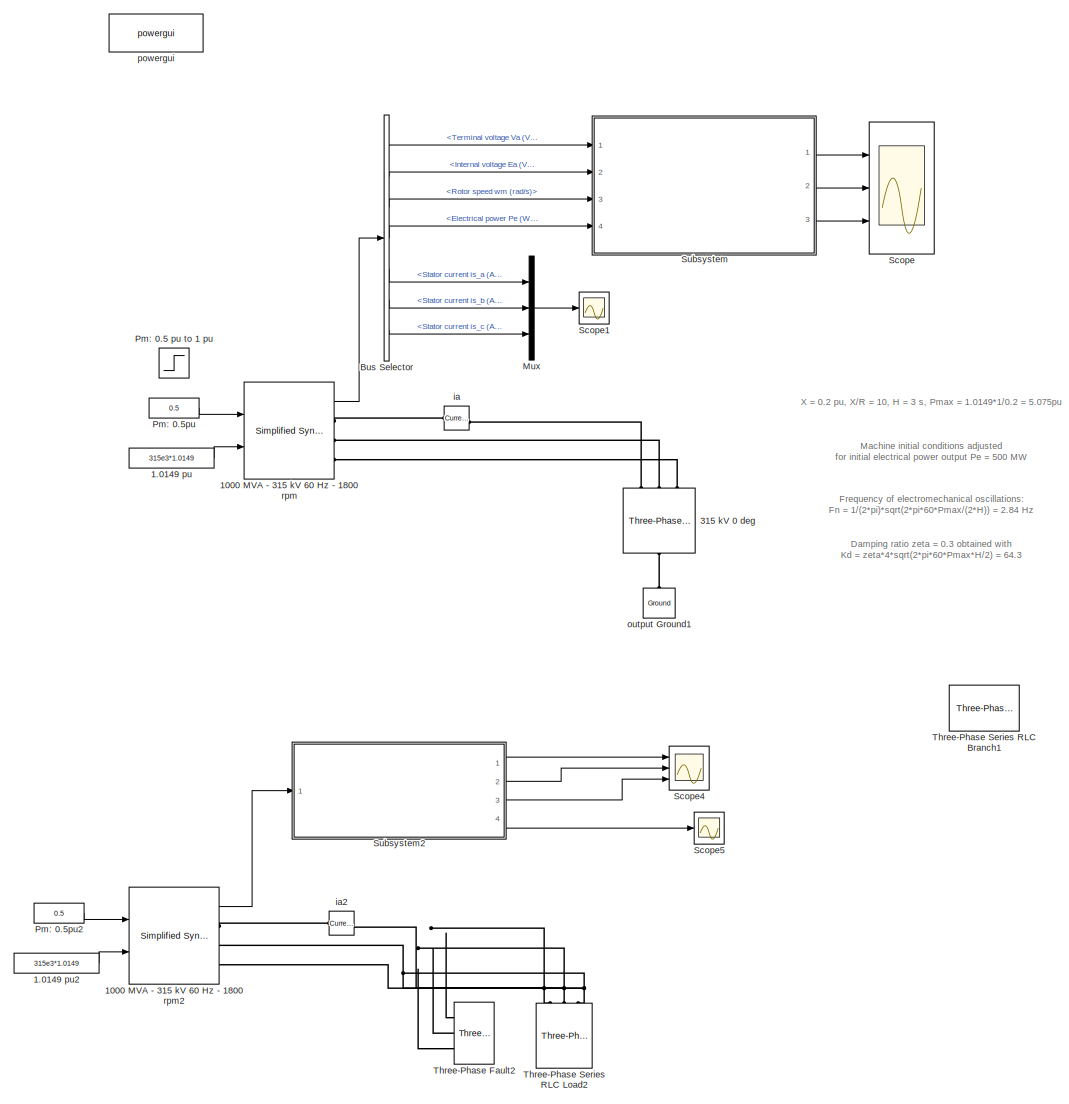
[diagram: root canvas - part 1/1, most of the canvas]
MODEL slx_e0d8c2427ed1
KIND model
CONFIG AbsTol = auto
CONFIG EnableMultiTasking = off
CONFIG FixedStep = auto
CONFIG MaxStep = auto
CONFIG MinStep = auto
CONFIG RelTol = 1e-3
CONFIG SampleTimeConstraint = Unconstrained
CONFIG Solver = VariableStepAuto
CONFIG SolverName = VariableStepAuto
CONFIG StartTime = 0.0
CONFIG StopTime = 2
BLOCK [Constant] 1.0149 pu
  Value = 315e3*1.0149
BLOCK [Constant] 1.0149 pu2
  Value = 315e3*1.0149
BLOCK [Reference] 1000 MVA - 315 kV 60 Hz - 1800 rpm  REF=powerlib/Machines/Simplified Synchronous
Machine SI Units
  AttributesFormatString = \n
  Ports = [2, 1, 0, 0, 0, 0, 3]
  SourceBlock = powerlib/Machines/Simplified Synchronous\nMachine SI Units
  SourceProductBaseCode = PS
  SourceProductName = Simscape Power Systems
  SourceType = Simplified Synchronous Machine
BLOCK [Reference] 1000 MVA - 315 kV 60 Hz - 1800 rpm2  REF=powerlib/Machines/Simplified Synchronous
Machine SI Units
  AttributesFormatString = \n
  Ports = [2, 1, 0, 0, 0, 0, 3]
  SourceBlock = powerlib/Machines/Simplified Synchronous\nMachine SI Units
  SourceProductBaseCode = PS
  SourceProductName = Simscape Power Systems
  SourceType = Simplified Synchronous Machine
BLOCK [Reference] 315 kV 0 deg  REF=powerlib/Electrical
Sources/Three-Phase
Programmable
Voltage Source
  Ports = [0, 0, 0, 0, 0, 1, 3]
  SourceBlock = powerlib/Electrical\nSources/Three-Phase\nProgrammable\nVoltage Source
  SourceProductBaseCode = PS
  SourceProductName = Simscape Power Systems
  SourceType = Three-Phase Programmable Voltage Source
BLOCK [BusSelector] Bus Selector
  OutputAsBus = off
  OutputSignals = Terminal voltage Va (V),Internal voltage Ea (V),Rotor speed wm (rad/s),Electrical power Pe (W),Stator current is_a (A),Stator current is_b (A),Stator current is_c (A)
  Ports = [1, 7]
BLOCK [Mux] Mux
  DisplayOption = bar
  Inputs = 3
  Ports = [3, 1]
BLOCK [Step] Pm: 0.5 pu to 1 pu
  After = 1000e6
  Before = 505e6
  SampleTime = 0
  Time = 0.5
BLOCK [Constant] Pm: 0.5pu
  Value = 0.5
BLOCK [Constant] Pm: 0.5pu2
  Value = 0.5
BLOCK [Scope] Scope
  Floating = off
  NumInputPorts = 3
  Ports = [3]
  ScopeSpecificationString = Simulink.scopes.TimeScopeBlockCfg('CurrentConfiguration', extmgr.ConfigurationSet(extmgr.Configuration('Core','General UI',true),extmgr.Configuration('Core','Source UI',true),extmgr.Configuration('Sources','WiredSimulink',true,'DataLogging',true,'DataLoggingVariableName','delta','DataLoggingSaveFormat','Structure','DataLoggingDecimation','1','DataLoggingDecimateData',true),extmgr.Configuration('Vi...<+3068ch>
BLOCK [Scope] Scope1
  Floating = off
  NumInputPorts = 1
  Ports = [1]
  ScopeSpecificationString = Simulink.scopes.TimeScopeBlockCfg('CurrentConfiguration', extmgr.ConfigurationSet(extmgr.Configuration('Core','General UI',true),extmgr.Configuration('Core','Source UI',true),extmgr.Configuration('Sources','WiredSimulink',true),extmgr.Configuration('Visuals','Time Domain',true,'SerializedDisplays',{struct('MinYLimReal','-26487.88358','MaxYLimReal','27077.44989','YLabelReal','','MinYLimMag','   0.0...<+1505ch>
BLOCK [Scope] Scope4
  Floating = off
  NumInputPorts = 3
  Ports = [3]
  ScopeSpecificationString = Simulink.scopes.TimeScopeBlockCfg('CurrentConfiguration', extmgr.ConfigurationSet(extmgr.Configuration('Core','General UI',true),extmgr.Configuration('Core','Source UI',true),extmgr.Configuration('Sources','WiredSimulink',true,'DataLogging',true,'DataLoggingVariableName','ScopeData3','DataLoggingSaveFormat','Structure','DataLoggingDecimation','1','DataLoggingDecimateData',true),extmgr.Configuratio...<+3078ch>
BLOCK [Scope] Scope5
  Floating = off
  NumInputPorts = 1
  Ports = [1]
  ScopeSpecificationString = Simulink.scopes.TimeScopeBlockCfg('CurrentConfiguration', extmgr.ConfigurationSet(extmgr.Configuration('Core','General UI',true),extmgr.Configuration('Core','Source UI',true),extmgr.Configuration('Sources','WiredSimulink',true,'DataLoggingVariableName','ScopeData4'),extmgr.Configuration('Visuals','Time Domain',true,'SerializedDisplays',{struct('MinYLimReal','-26487.88358','MaxYLimReal','27077.4498...<+1469ch>
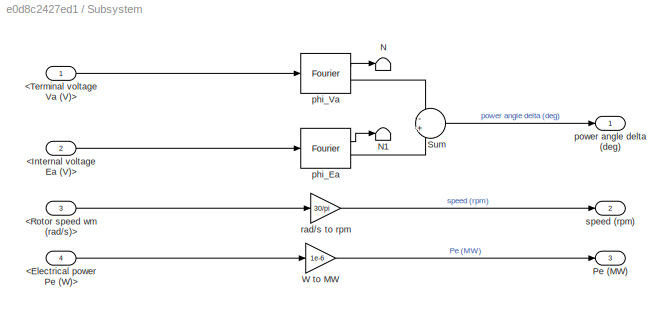
BLOCK [SubSystem] Subsystem
  Ports = [4, 3]
  RequestExecContextInheritance = off
BLOCK [Inport] Subsystem/<Electrical power Pe (W)>
  IconDisplay = Port number
  Port = 4
BLOCK [Inport] Subsystem/<Internal voltage Ea (V)>
  IconDisplay = Port number
  Port = 2
BLOCK [Inport] Subsystem/<Rotor speed wm (rad//s)>
  IconDisplay = Port number
  Port = 3
BLOCK [Inport] Subsystem/<Terminal voltage Va (V)>
  IconDisplay = Port number
BLOCK [Terminator] Subsystem/N
BLOCK [Terminator] Subsystem/N1
BLOCK [Outport] Subsystem/Pe (MW)
  IconDisplay = Port number
  Port = 3
BLOCK [Sum] Subsystem/Sum
  IconShape = round
  Inputs = -+
  Ports = [2, 1]
BLOCK [Gain] Subsystem/W to MW
  Gain = 1e-6
BLOCK [Reference] Subsystem/phi_Ea  REF=powerlib_meascontrol/Measurements/Fourier
  Ports = [1, 2]
  SourceBlock = powerlib_meascontrol/Measurements/Fourier
  SourceProductBaseCode = PS
  SourceProductName = Simscape Power Systems
  SourceType = Fourier
BLOCK [Reference] Subsystem/phi_Va  REF=powerlib_meascontrol/Measurements/Fourier
  Ports = [1, 2]
  SourceBlock = powerlib_meascontrol/Measurements/Fourier
  SourceProductBaseCode = PS
  SourceProductName = Simscape Power Systems
  SourceType = Fourier
BLOCK [Outport] Subsystem/power angle delta (deg)
  IconDisplay = Port number
BLOCK [Gain] Subsystem/rad//s to rpm
  Gain = 30/pi
BLOCK [Outport] Subsystem/speed (rpm)
  IconDisplay = Port number
  Port = 2
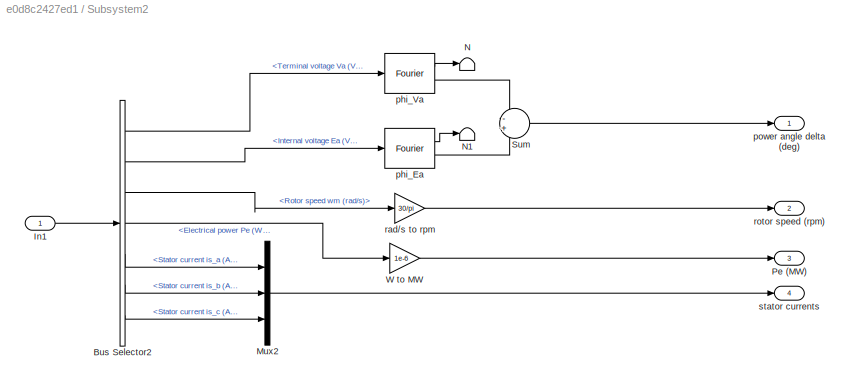
BLOCK [SubSystem] Subsystem2
  Ports = [1, 4]
  RequestExecContextInheritance = off
BLOCK [BusSelector] Subsystem2/Bus Selector2
  OutputAsBus = off
  OutputSignals = Terminal voltage Va (V),Internal voltage Ea (V),Rotor speed wm (rad/s),Electrical power Pe (W),Stator current is_a (A),Stator current is_b (A),Stator current is_c (A)
  Ports = [1, 7]
BLOCK [Inport] Subsystem2/In1
  IconDisplay = Port number
BLOCK [Mux] Subsystem2/Mux2
  DisplayOption = bar
  Inputs = 3
  Ports = [3, 1]
BLOCK [Terminator] Subsystem2/N
BLOCK [Terminator] Subsystem2/N1
BLOCK [Outport] Subsystem2/Pe (MW)
  IconDisplay = Port number
  Port = 3
BLOCK [Sum] Subsystem2/Sum
  IconShape = round
  Inputs = -+
  Ports = [2, 1]
BLOCK [Gain] Subsystem2/W to MW
  Gain = 1e-6
BLOCK [Reference] Subsystem2/phi_Ea  REF=powerlib_meascontrol/Measurements/Fourier
  Ports = [1, 2]
  SourceBlock = powerlib_meascontrol/Measurements/Fourier
  SourceProductBaseCode = PS
  SourceProductName = Simscape Power Systems
  SourceType = Fourier
BLOCK [Reference] Subsystem2/phi_Va  REF=powerlib_meascontrol/Measurements/Fourier
  Ports = [1, 2]
  SourceBlock = powerlib_meascontrol/Measurements/Fourier
  SourceProductBaseCode = PS
  SourceProductName = Simscape Power Systems
  SourceType = Fourier
BLOCK [Outport] Subsystem2/power angle delta (deg)
  IconDisplay = Port number
BLOCK [Gain] Subsystem2/rad//s to rpm
  Gain = 30/pi
BLOCK [Outport] Subsystem2/rotor speed (rpm)
  IconDisplay = Port number
  Port = 2
BLOCK [Outport] Subsystem2/stator currents
  IconDisplay = Port number
  Port = 4
BLOCK [Reference] Three-Phase Fault2  REF=powerlib/Elements/Three-Phase Fault
  Ports = [0, 0, 0, 0, 0, 3]
  SourceBlock = powerlib/Elements/Three-Phase Fault
  SourceProductBaseCode = PS
  SourceProductName = Simscape Power Systems
  SourceType = Three-Phase Fault
BLOCK [Reference] Three-Phase Series RLC Branch1  REF=powerlib/Elements/Three-Phase
Series RLC Branch
  AttributesFormatString = \n
  Ports = [0, 0, 0, 0, 0, 3, 3]
  SourceBlock = powerlib/Elements/Three-Phase\nSeries RLC Branch
  SourceProductBaseCode = PS
  SourceProductName = Simscape Power Systems
  SourceType = Three-Phase Series RLC Branch
BLOCK [Reference] Three-Phase Series RLC Load2  REF=powerlib/Elements/Three-Phase
Series RLC Load
  AttributesFormatString = \n
  Ports = [0, 0, 0, 0, 0, 3]
  SourceBlock = powerlib/Elements/Three-Phase\nSeries RLC Load
  SourceProductBaseCode = PS
  SourceProductName = Simscape Power Systems
  SourceType = Three-Phase Series RLC Load
BLOCK [Reference] ia  REF=powerlib/Measurements/Current Measurement
  AttributesFormatString = \n
  Ports = [0, 1, 0, 0, 0, 1, 1]
  SourceBlock = powerlib/Measurements/Current Measurement
  SourceProductBaseCode = PS
  SourceProductName = Simscape Power Systems
  SourceType = Current Measurement
  Tag = PoWeRsYsTeMmEaSuReMeNt
BLOCK [Reference] ia2  REF=powerlib/Measurements/Current Measurement
  AttributesFormatString = \n
  Ports = [0, 1, 0, 0, 0, 1, 1]
  SourceBlock = powerlib/Measurements/Current Measurement
  SourceProductBaseCode = PS
  SourceProductName = Simscape Power Systems
  SourceType = Current Measurement
  Tag = PoWeRsYsTeMmEaSuReMeNt
BLOCK [Reference] output Ground1  REF=powerlib/Elements/Ground
  AttributesFormatString = \n
  Ports = [0, 0, 0, 0, 0, 1]
  SourceBlock = powerlib/Elements/Ground
  SourceProductBaseCode = PS
  SourceProductName = Simscape Power Systems
  SourceType = Ground
BLOCK [Reference] powergui  REF=powerlib/powergui
  Ports = []
  Priority = 2
  SourceBlock = powerlib/powergui
  SourceProductBaseCode = PS
  SourceProductName = Simscape Power Systems
  SourceType = PSB option menu block
ANNOTATION (root): Damping ratio zeta = 0.3 obtained with Kd = zeta*4*sqrt(2*pi*60*Pmax*H/2) = 64.3
ANNOTATION (root): Frequency of electromechanical oscillations: Fn = 1/(2*pi)*sqrt(2*pi*60*Pmax/(2*H)) = 2.84 Hz
ANNOTATION (root): Machine initial conditions adjusted for initial electrical power output Pe = 500 MW
ANNOTATION (root): X = 0.2 pu, X/R = 10, H = 3 s, Pmax = 1.0149*1/0.2 = 5.075pu
LINE 1.0149 pu2:1 -> 1000 MVA - 315 kV 60 Hz - 1800 rpm2:2
LINE 1.0149 pu:1 -> 1000 MVA - 315 kV 60 Hz - 1800 rpm:2
LINE 1000 MVA - 315 kV 60 Hz - 1800 rpm2:1 -> Subsystem2:1
LINE 1000 MVA - 315 kV 60 Hz - 1800 rpm:1 -> Bus Selector:1
LINE Bus Selector:1 -> Subsystem:1
LINE Bus Selector:2 -> Subsystem:2
LINE Bus Selector:3 -> Subsystem:3
LINE Bus Selector:4 -> Subsystem:4
LINE Bus Selector:5 -> Mux:1
LINE Bus Selector:6 -> Mux:2
LINE Bus Selector:7 -> Mux:3
LINE Mux:1 -> Scope1:1
LINE Pm: 0.5pu2:1 -> 1000 MVA - 315 kV 60 Hz - 1800 rpm2:1
LINE Pm: 0.5pu:1 -> 1000 MVA - 315 kV 60 Hz - 1800 rpm:1
LINE Subsystem/<Electrical power Pe (W)>:1 -> Subsystem/W to MW:1
LINE Subsystem/<Internal voltage Ea (V)>:1 -> Subsystem/phi_Ea:1
LINE Subsystem/<Rotor speed wm (rad//s)>:1 -> Subsystem/rad//s to rpm:1
LINE Subsystem/<Terminal voltage Va (V)>:1 -> Subsystem/phi_Va:1
LINE Subsystem/Sum:1 -> Subsystem/power angle delta (deg):1
LINE Subsystem/W to MW:1 -> Subsystem/Pe (MW):1
LINE Subsystem/phi_Ea:1 -> Subsystem/N1:1
LINE Subsystem/phi_Ea:2 -> Subsystem/Sum:2
LINE Subsystem/phi_Va:1 -> Subsystem/N:1
LINE Subsystem/phi_Va:2 -> Subsystem/Sum:1
LINE Subsystem/rad//s to rpm:1 -> Subsystem/speed (rpm):1
LINE Subsystem2/Bus Selector2:1 -> Subsystem2/phi_Va:1
LINE Subsystem2/Bus Selector2:2 -> Subsystem2/phi_Ea:1
LINE Subsystem2/Bus Selector2:3 -> Subsystem2/rad//s to rpm:1
LINE Subsystem2/Bus Selector2:4 -> Subsystem2/W to MW:1
LINE Subsystem2/Bus Selector2:5 -> Subsystem2/Mux2:1
LINE Subsystem2/Bus Selector2:6 -> Subsystem2/Mux2:2
LINE Subsystem2/Bus Selector2:7 -> Subsystem2/Mux2:3
LINE Subsystem2/In1:1 -> Subsystem2/Bus Selector2:1
LINE Subsystem2/Mux2:1 -> Subsystem2/stator currents:1
LINE Subsystem2/Sum:1 -> Subsystem2/power angle delta (deg):1
LINE Subsystem2/W to MW:1 -> Subsystem2/Pe (MW):1
LINE Subsystem2/phi_Ea:1 -> Subsystem2/N1:1
LINE Subsystem2/phi_Ea:2 -> Subsystem2/Sum:2
LINE Subsystem2/phi_Va:1 -> Subsystem2/N:1
LINE Subsystem2/phi_Va:2 -> Subsystem2/Sum:1
LINE Subsystem2/rad//s to rpm:1 -> Subsystem2/rotor speed (rpm):1
LINE Subsystem2:1 -> Scope4:1
LINE Subsystem2:2 -> Scope4:2
LINE Subsystem2:3 -> Scope4:3
LINE Subsystem2:4 -> Scope5:1
LINE Subsystem:1 -> Scope:1
LINE Subsystem:2 -> Scope:2
LINE Subsystem:3 -> Scope:3
PLINE 1000 MVA - 315 kV 60 Hz - 1800 rpm2:RConn1 -- ia2:LConn1
PNET net1: 1000 MVA - 315 kV 60 Hz - 1800 rpm2:RConn2 -- Three-Phase Fault2:LConn2 -- Three-Phase Series RLC Load2:LConn2
PNET net2: 1000 MVA - 315 kV 60 Hz - 1800 rpm2:RConn3 -- Three-Phase Fault2:LConn3 -- Three-Phase Series RLC Load2:LConn3
PLINE 1000 MVA - 315 kV 60 Hz - 1800 rpm:RConn1 -- ia:LConn1
PLINE 1000 MVA - 315 kV 60 Hz - 1800 rpm:RConn2 -- 315 kV 0 deg:RConn2
PLINE 1000 MVA - 315 kV 60 Hz - 1800 rpm:RConn3 -- 315 kV 0 deg:RConn3
PLINE 315 kV 0 deg:LConn1 -- output Ground1:LConn1
PLINE 315 kV 0 deg:RConn1 -- ia:RConn1
PNET net3: Three-Phase Fault2:LConn1 -- Three-Phase Series RLC Load2:LConn1 -- ia2:RConn1
note: PNET lines group multi-terminal physical nets as a canonical sorted terminal list (undirected conserving connections); 2-terminal nets keep the pairwise PLINE form
